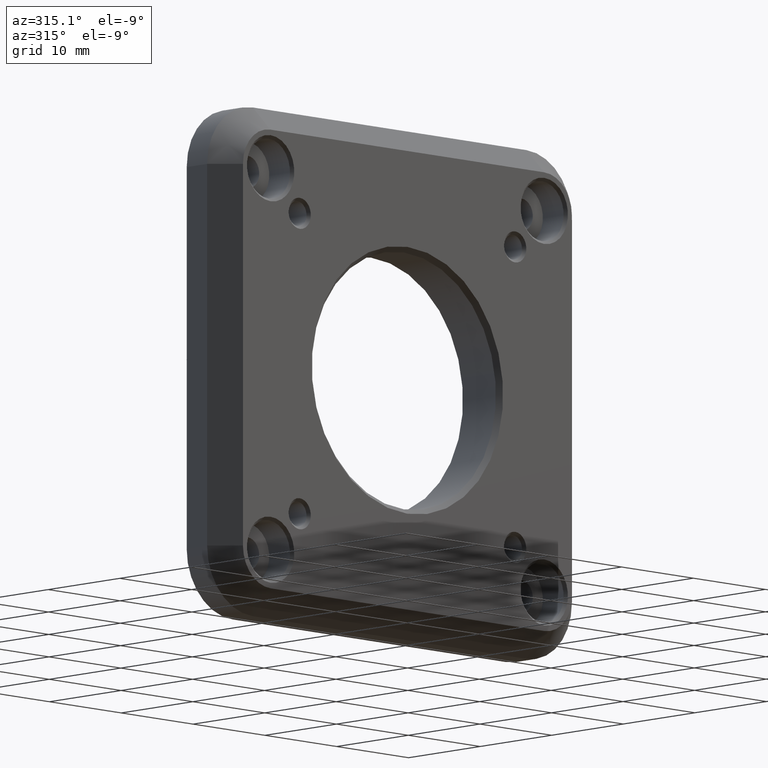
[diagram: clean part render]
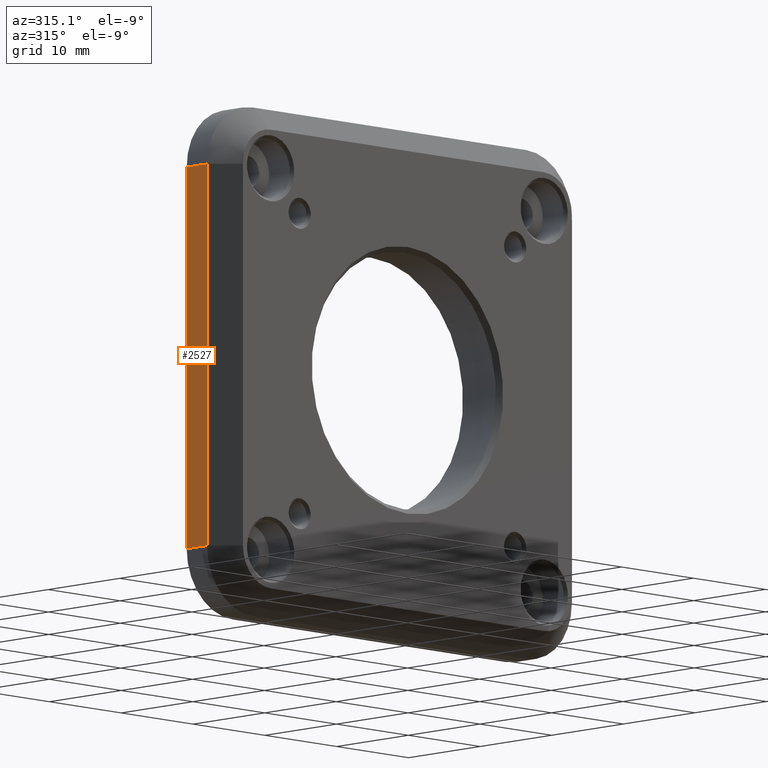
[diagram: same view with one face highlighted and labeled with its STEP entity id]
A machine part, auxiliary view. The second image highlights one B-rep face of the part: STEP entity #2527.
In plain terms, the highlighted planar face has unit normal (1, 0, -0).
Its self-contained STEP definition (entity closure, byte-faithful):
#96 = LINE ( 'NONE', #953, #3031 ) ;
#339 = CARTESIAN_POINT ( 'NONE',  ( -25.40000000000000213, 2.499999999999988454, -25.39999999999999503 ) ) ;
#670 = AXIS2_PLACEMENT_3D ( 'NONE', #3185, #1355, #3853 ) ;
#788 = ORIENTED_EDGE ( 'NONE', *, *, #3930, .T. ) ;
#811 = CARTESIAN_POINT ( 'NONE',  ( -25.39999999999999503, 5.599999999999999645, 19.05000000000000782 ) ) ;
#916 = CARTESIAN_POINT ( 'NONE',  ( -25.40000000000000568, 2.499999999999992450, -19.04999999999999716 ) ) ;
#953 = CARTESIAN_POINT ( 'NONE',  ( -25.40000000000000213, 5.599999999999999645, -19.04999999999999716 ) ) ;
#1041 = VERTEX_POINT ( 'NONE', #3335 ) ;
#1304 = CARTESIAN_POINT ( 'NONE',  ( -25.39999999999999503, 5.349999999999999645, 19.05000000000000782 ) ) ;
#1310 = VERTEX_POINT ( 'NONE', #3266 ) ;
#1341 = EDGE_CURVE ( 'NONE', #1310, #2664, #3545, .T. ) ;
#1355 = DIRECTION ( 'NONE',  ( 1.000000000000000000, 0.000000000000000000, -1.365923996832131609E-16 ) ) ;
#1610 = DIRECTION ( 'NONE',  ( -1.365923996832131609E-16, -4.553079989440418360E-17, -1.000000000000000000 ) ) ;
#1626 = PLANE ( 'NONE',  #670 ) ;
#1726 = ORIENTED_EDGE ( 'NONE', *, *, #1341, .T. ) ;
#1798 = ORIENTED_EDGE ( 'NONE', *, *, #2833, .F. ) ;
#1806 = DIRECTION ( 'NONE',  ( -0.000000000000000000, 1.000000000000000000, -0.000000000000000000 ) ) ;
#1886 = VERTEX_POINT ( 'NONE', #916 ) ;
#1906 = FACE_OUTER_BOUND ( 'NONE', #1993, .T. ) ;
#1993 = EDGE_LOOP ( 'NONE', ( #1798, #1726, #788, #2097 ) ) ;
#2074 = VECTOR ( 'NONE', #1806, 1000.000000000000000 ) ;
#2097 = ORIENTED_EDGE ( 'NONE', *, *, #2312, .T. ) ;
#2230 = LINE ( 'NONE', #339, #2553 ) ;
#2312 = EDGE_CURVE ( 'NONE', #1041, #1886, #96, .T. ) ;
#2527 = ADVANCED_FACE ( 'NONE', ( #1906 ), #1626, .F. ) ;
#2553 = VECTOR ( 'NONE', #1610, 1000.000000000000000 ) ;
#2589 = CARTESIAN_POINT ( 'NONE',  ( -25.40000000000000213, 5.349999999999999645, -19.04999999999999716 ) ) ;
#2664 = VERTEX_POINT ( 'NONE', #1304 ) ;
#2833 = EDGE_CURVE ( 'NONE', #1310, #1886, #2230, .T. ) ;
#3031 = VECTOR ( 'NONE', #3359, 1000.000000000000000 ) ;
#3185 = CARTESIAN_POINT ( 'NONE',  ( -25.40000000000000213, 5.599999999999999645, -25.39999999999999503 ) ) ;
#3266 = CARTESIAN_POINT ( 'NONE',  ( -25.39999999999999858, 2.499999999999992006, 19.05000000000000782 ) ) ;
#3301 = LINE ( 'NONE', #2589, #3746 ) ;
#3335 = CARTESIAN_POINT ( 'NONE',  ( -25.40000000000000213, 5.349999999999999645, -19.04999999999999716 ) ) ;
#3359 = DIRECTION ( 'NONE',  ( 0.000000000000000000, -1.000000000000000000, 0.000000000000000000 ) ) ;
#3540 = DIRECTION ( 'NONE',  ( -1.365923996832131609E-16, 0.000000000000000000, -1.000000000000000000 ) ) ;
#3545 = LINE ( 'NONE', #811, #2074 ) ;
#3746 = VECTOR ( 'NONE', #3540, 1000.000000000000000 ) ;
#3853 = DIRECTION ( 'NONE',  ( -1.365923996832131609E-16, 0.000000000000000000, -1.000000000000000000 ) ) ;
#3930 = EDGE_CURVE ( 'NONE', #2664, #1041, #3301, .T. ) ;